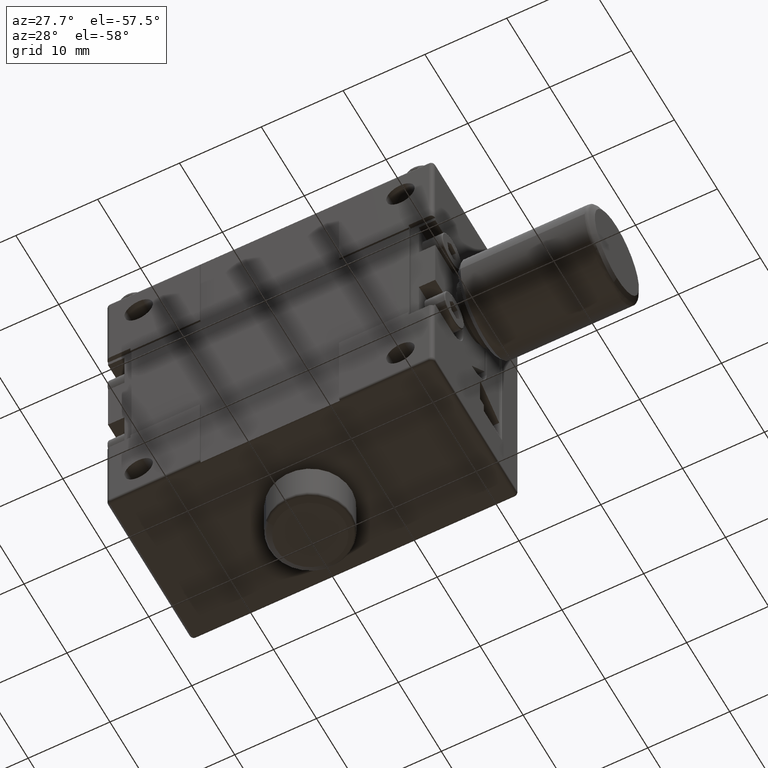
[diagram: clean part render]
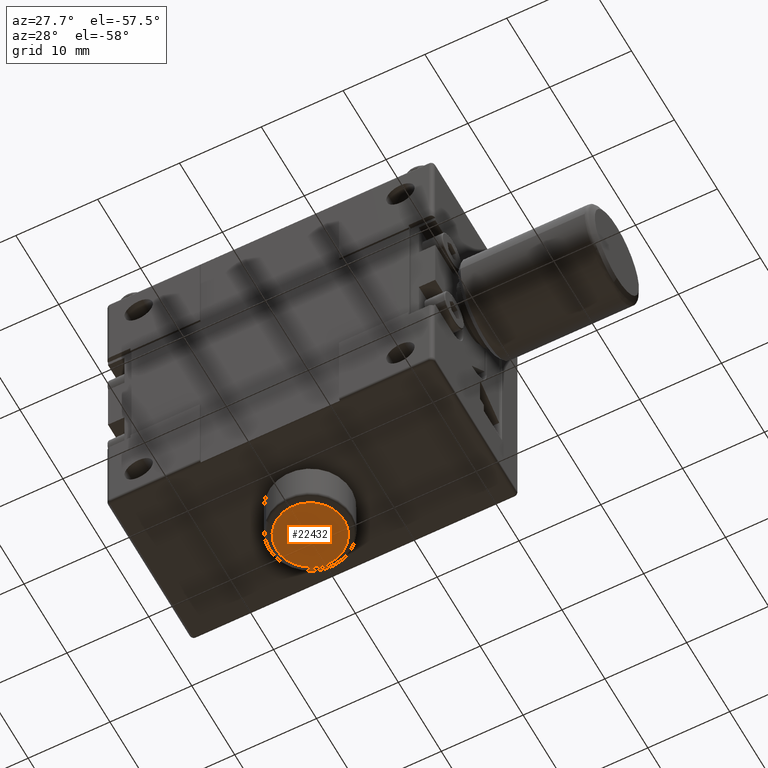
[diagram: same view with one face highlighted and labeled with its STEP entity id]
A machine part, auxiliary view. The second image highlights one B-rep face of the part: STEP entity #22432.
In plain terms, the highlighted planar face has unit normal (0, -0, 1).
Its self-contained STEP definition (entity closure, byte-faithful):
#954 = CARTESIAN_POINT ( 'NONE',  ( 2.952767202204194863, 32.39325280812840191, -27.79984303491605147 ) ) ;
#1418 = AXIS2_PLACEMENT_3D ( 'NONE', #22677, #2664, #11121 ) ;
#2131 = ORIENTED_EDGE ( 'NONE', *, *, #13455, .T. ) ;
#2664 = DIRECTION ( 'NONE',  ( -7.143418337831520054E-17, 7.290358906872620155E-17, -1.000000000000000000 ) ) ;
#5312 = DIRECTION ( 'NONE',  ( 0.7142683471996441602, 0.6998719369918247057, 0.000000000000000000 ) ) ;
#6262 = VERTEX_POINT ( 'NONE', #10272 ) ;
#7518 = AXIS2_PLACEMENT_3D ( 'NONE', #11875, #20508, #5312 ) ;
#7610 = CARTESIAN_POINT ( 'NONE',  ( -4.553649124439119412E-15, 29.50000000000000000, -27.79984303491605147 ) ) ;
#8907 = CIRCLE ( 'NONE', #7518, 4.133974596215553632 ) ;
#10272 = CARTESIAN_POINT ( 'NONE',  ( -2.952767202204205077, 26.60674719187165138, -27.79984303491605147 ) ) ;
#11121 = DIRECTION ( 'NONE',  ( 0.7142683471996441602, 0.6998719369918247057, 0.000000000000000000 ) ) ;
#11875 = CARTESIAN_POINT ( 'NONE',  ( -4.553649124439119412E-15, 29.50000000000000000, -27.79984303491605147 ) ) ;
#12367 = AXIS2_PLACEMENT_3D ( 'NONE', #7610, #21055, #25424 ) ;
#13455 = EDGE_CURVE ( 'NONE', #6262, #25554, #8907, .T. ) ;
#14464 = CIRCLE ( 'NONE', #1418, 4.133974596215553632 ) ;
#18587 = ORIENTED_EDGE ( 'NONE', *, *, #27241, .T. ) ;
#20508 = DIRECTION ( 'NONE',  ( -7.143418337831520054E-17, 7.290358906872620155E-17, -1.000000000000000000 ) ) ;
#21055 = DIRECTION ( 'NONE',  ( 1.272667489957109818E-16, -1.819635473716209905E-17, 1.000000000000000000 ) ) ;
#22432 = ADVANCED_FACE ( 'NONE', ( #27631 ), #25141, .F. ) ;
#22677 = CARTESIAN_POINT ( 'NONE',  ( -4.553649124439119412E-15, 29.50000000000000000, -27.79984303491605147 ) ) ;
#24924 = EDGE_LOOP ( 'NONE', ( #2131, #18587 ) ) ;
#25141 = PLANE ( 'NONE',  #12367 ) ;
#25424 = DIRECTION ( 'NONE',  ( 1.000000000000000000, 0.000000000000000000, -1.272667489957109818E-16 ) ) ;
#25554 = VERTEX_POINT ( 'NONE', #954 ) ;
#27241 = EDGE_CURVE ( 'NONE', #25554, #6262, #14464, .T. ) ;
#27631 = FACE_OUTER_BOUND ( 'NONE', #24924, .T. ) ;